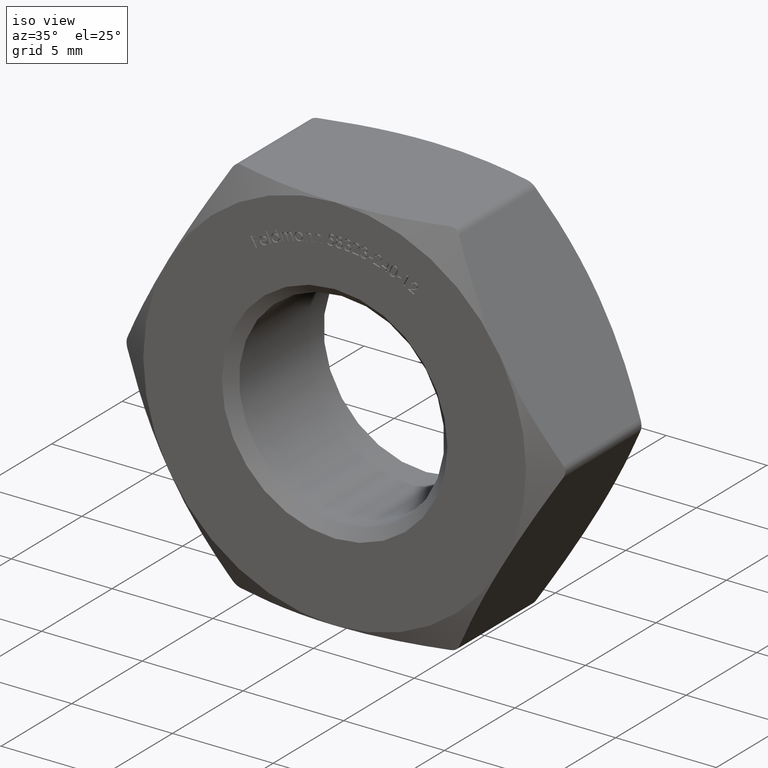
[diagram: clean part render]
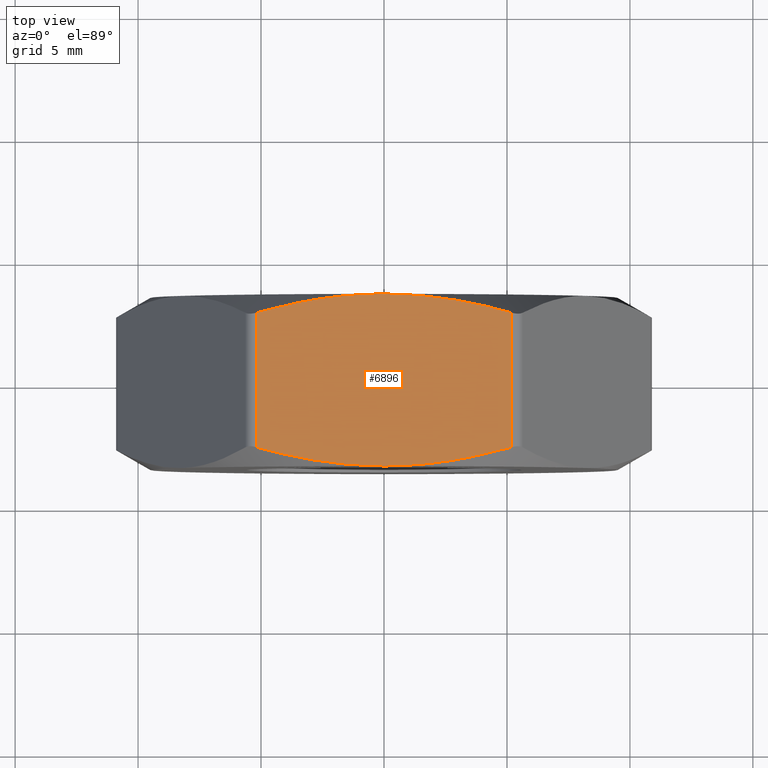
[diagram: tour spotlight — one face highlighted and labeled with its STEP entity id]
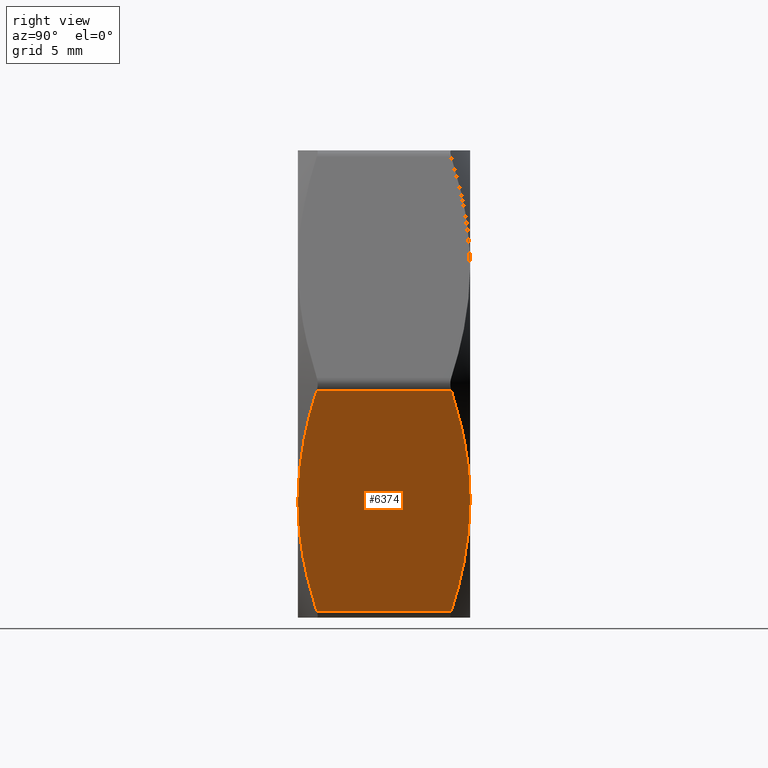
[diagram: tour spotlight — one face highlighted and labeled with its STEP entity id]
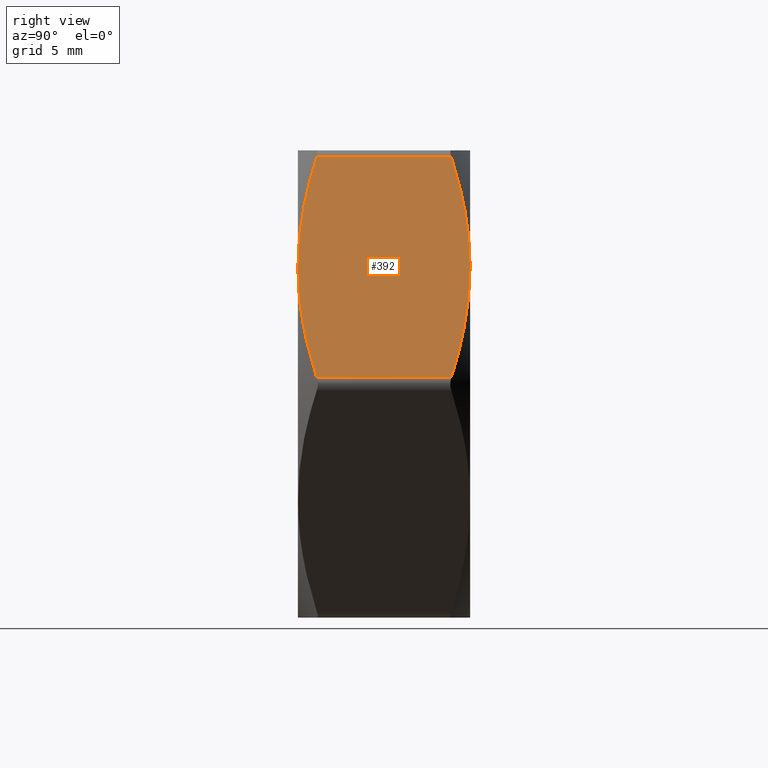
[diagram: tour spotlight — one face highlighted and labeled with its STEP entity id]
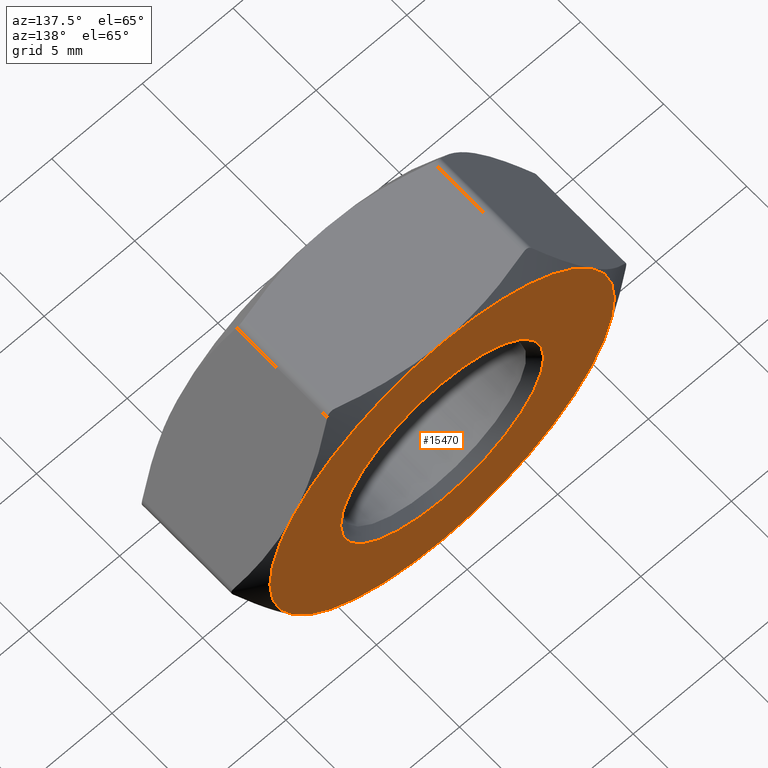
[diagram: tour spotlight — one face highlighted and labeled with its STEP entity id]
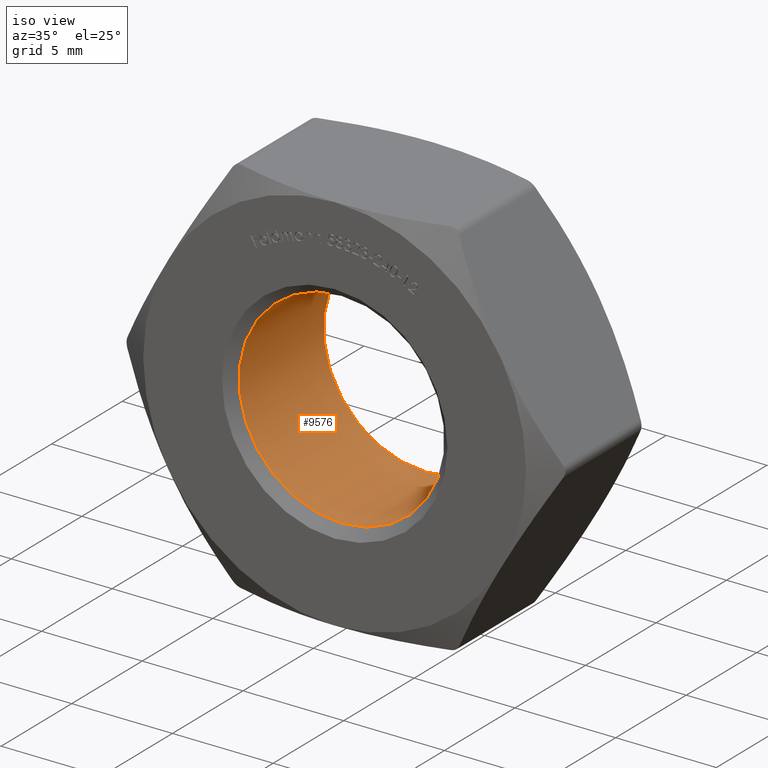
[diagram: tour spotlight — one face highlighted and labeled with its STEP entity id]
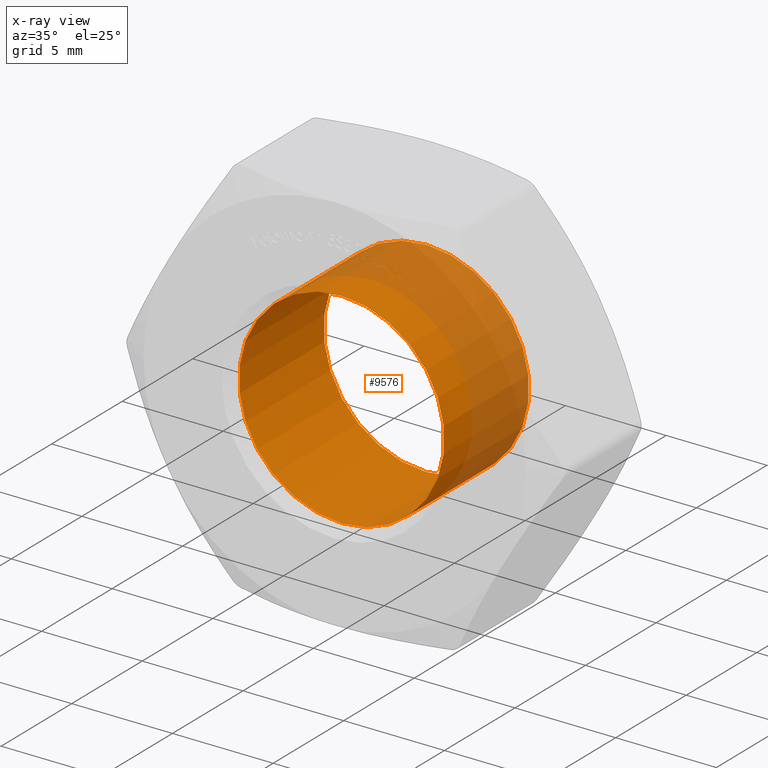
[diagram: x-ray of the same camera — body ghosted, this tour face saturated]
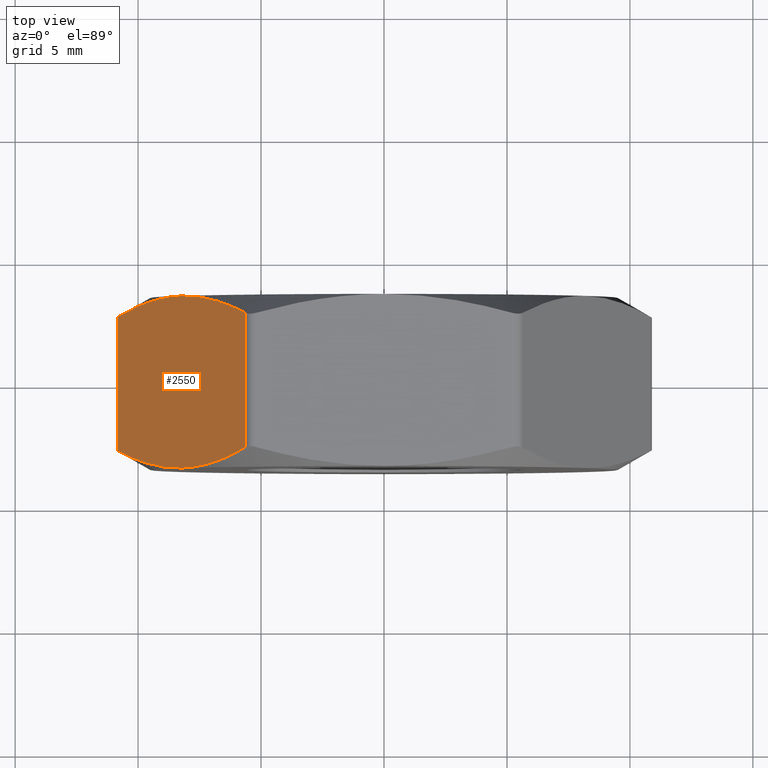
[diagram: tour spotlight — one face highlighted and labeled with its STEP entity id]
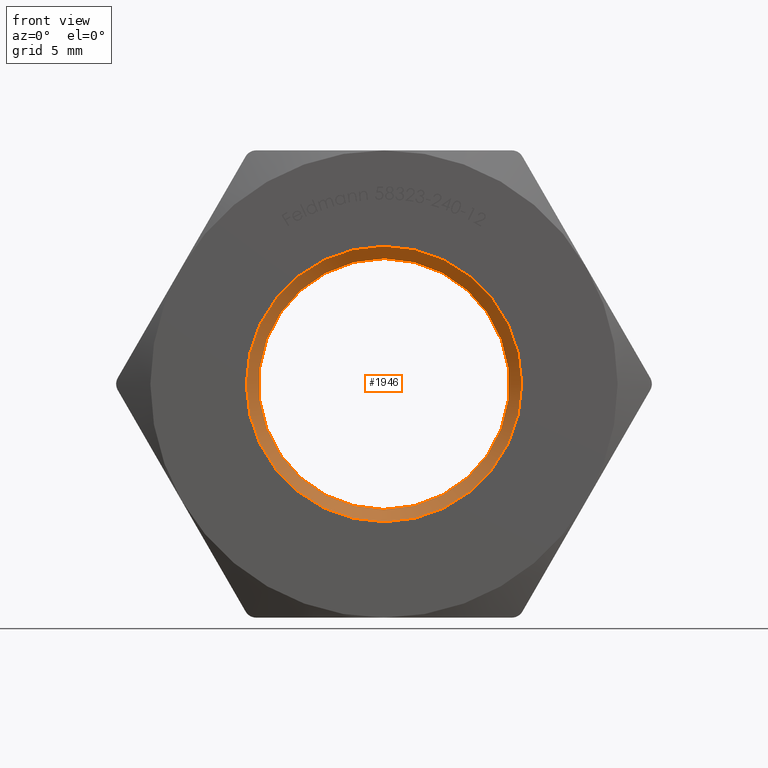
[diagram: tour spotlight — one face highlighted and labeled with its STEP entity id]
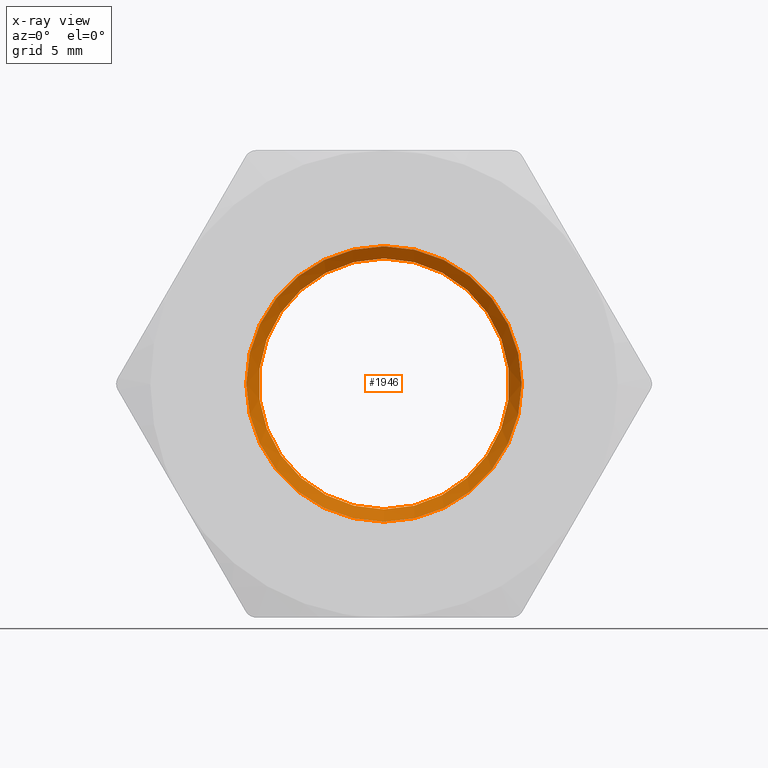
[diagram: x-ray of the same camera — body ghosted, this tour face saturated]
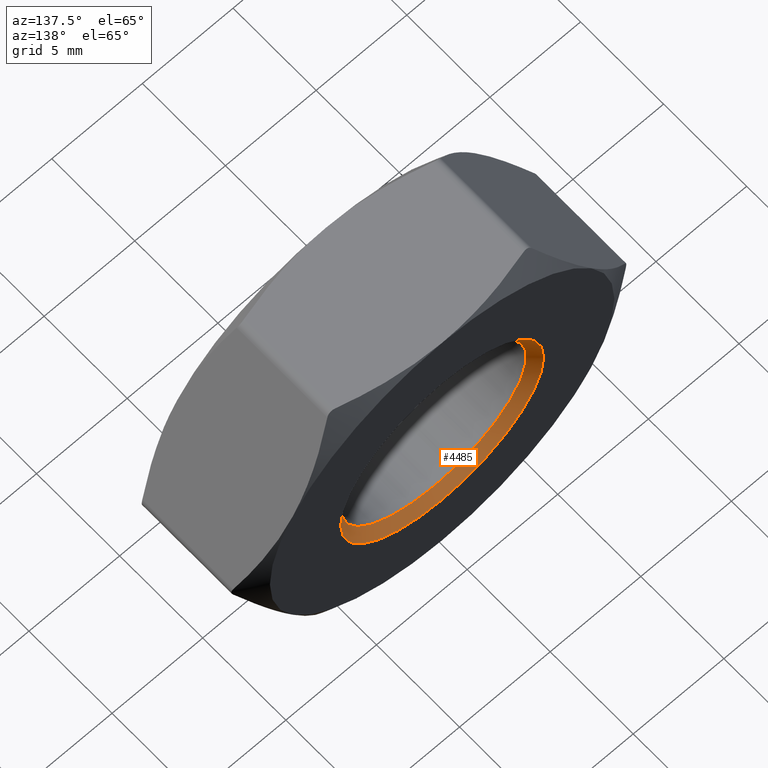
[diagram: tour spotlight — one face highlighted and labeled with its STEP entity id]
A machine part: a face-by-face anatomy tour. The part has 295 B-rep faces; the first image is the clean iso view, then the 8 largest visible faces are spotlighted one at a time (largest first), each with its STEP entity span.

Face 1 — top view, entity #6896. In plain terms, the highlighted planar face has unit normal (0, 0, -1).
Definition (entity closure, byte-faithful):
#66 = LINE ( 'NONE', #2085, #14171 ) ;
#240 = DIRECTION ( 'NONE',  ( 0.0000000000000000000, -1.000000000000000000, 0.0000000000000000000 ) ) ;
#1263 = CARTESIAN_POINT ( 'NONE',  ( -5.196152422707281300, -2.733161112797592600, 9.500000000000001800 ) ) ;
#1302 = ORIENTED_EDGE ( 'NONE', *, *, #11819, .T. ) ;
#1359 = CARTESIAN_POINT ( 'NONE',  ( 1.760928236677265200, -3.412279427820716900, 9.499999999999998200 ) ) ;
#1393 = CARTESIAN_POINT ( 'NONE',  ( -4.348666152671948600, -2.967960792442867900, 9.500000000000001800 ) ) ;
#1586 = ORIENTED_EDGE ( 'NONE', *, *, #12174, .T. ) ;
#1719 = AXIS2_PLACEMENT_3D ( 'NONE', #13876, #13938, #2223 ) ;
#1862 = CARTESIAN_POINT ( 'NONE',  ( 0.4385791114193116600, 3.500000000000000400, 9.500000000000001800 ) ) ;
#2085 = CARTESIAN_POINT ( 'NONE',  ( 5.196152422706629400, 3.500000000000000000, 9.500000000000001800 ) ) ;
#2223 = DIRECTION ( 'NONE',  ( -1.000000000000000000, 0.0000000000000000000, -0.0000000000000000000 ) ) ;
#2463 = CARTESIAN_POINT ( 'NONE',  ( 3.931690912932538000E-017, 3.500000000000000000, 9.500000000000001800 ) ) ;
#2633 = CARTESIAN_POINT ( 'NONE',  ( 4.354865280869844900, -2.966243297580165800, 9.500000000000000000 ) ) ;
#3201 = ORIENTED_EDGE ( 'NONE', *, *, #5594, .T. ) ;
#3647 = CARTESIAN_POINT ( 'NONE',  ( -3.482435840627231100, 3.163065989375614300, 9.500000000000000000 ) ) ;
#3751 = CARTESIAN_POINT ( 'NONE',  ( -3.482435840627232900, -3.163065989375615700, 9.500000000000001800 ) ) ;
#4052 = CARTESIAN_POINT ( 'NONE',  ( 0.4385791114193118300, -3.500000000000000900, 9.500000000000005300 ) ) ;
#4646 = B_SPLINE_CURVE_WITH_KNOTS ( 'NONE', 3,
 ( #10373, #4052, #6693, #1359, #10586, #10427, #2633, #14314 ),
 .UNSPECIFIED., .F., .F.,
 ( 4, 2, 2, 4 ),
 ( 0.01533434628928726800, 0.01664715435547534100, 0.01795996242166341200, 0.02058557855403955700 ),
 .UNSPECIFIED. ) ;
#4768 = VERTEX_POINT ( 'NONE', #5012 ) ;
#5012 = CARTESIAN_POINT ( 'NONE',  ( 5.196152422706628500, -2.733161112797773300, 9.500000000000001800 ) ) ;
#5090 = EDGE_LOOP ( 'NONE', ( #1586, #3201, #7163, #6898, #6024, #1302 ) ) ;
#5537 = EDGE_CURVE ( 'NONE', #15107, #9772, #6903, .T. ) ;
#5594 = EDGE_CURVE ( 'NONE', #4768, #16741, #66, .T. ) ;
#6024 = ORIENTED_EDGE ( 'NONE', *, *, #5537, .T. ) ;
#6248 = CARTESIAN_POINT ( 'NONE',  ( -5.196152422707281300, 2.733161112797592600, 9.500000000000001800 ) ) ;
#6693 = CARTESIAN_POINT ( 'NONE',  ( 0.8784862103107673500, -3.482381200358126700, 9.500000000000000000 ) ) ;
#6896 = ADVANCED_FACE ( 'NONE', ( #13353 ), #12633, .F. ) ;
#6898 = ORIENTED_EDGE ( 'NONE', *, *, #10385, .T. ) ;
#6903 = LINE ( 'NONE', #14333, #9334 ) ;
#7095 = CARTESIAN_POINT ( 'NONE',  ( 5.196152422706628500, 2.733161112797773300, 9.500000000000001800 ) ) ;
#7163 = ORIENTED_EDGE ( 'NONE', *, *, #11912, .T. ) ;
#7400 = CARTESIAN_POINT ( 'NONE',  ( 3.931690912932538000E-017, 3.500000000000000000, 9.500000000000001800 ) ) ;
#7862 = CARTESIAN_POINT ( 'NONE',  ( -5.196152422707281300, -2.733161112797592600, 9.500000000000001800 ) ) ;
#8284 = CARTESIAN_POINT ( 'NONE',  ( 3.931690912932538000E-017, 3.500000000000000000, 9.500000000000001800 ) ) ;
#8340 = CARTESIAN_POINT ( 'NONE',  ( 1.760928236677264300, 3.412279427820718200, 9.500000000000001800 ) ) ;
#8998 = VERTEX_POINT ( 'NONE', #7400 ) ;
#9288 = CARTESIAN_POINT ( 'NONE',  ( 5.196152422706628500, 2.733161112797773300, 9.500000000000001800 ) ) ;
#9334 = VECTOR ( 'NONE', #240, 1000.000000000000000 ) ;
#9756 = CARTESIAN_POINT ( 'NONE',  ( 4.354865280869846700, 2.966243297580164900, 9.500000000000000000 ) ) ;
#9772 = VERTEX_POINT ( 'NONE', #1263 ) ;
#10227 = B_SPLINE_CURVE_WITH_KNOTS ( 'NONE', 3,
 ( #7095, #9756, #13506, #13622, #8340, #12262, #1862, #8284 ),
 .UNSPECIFIED., .F., .F.,
 ( 4, 2, 2, 4 ),
 ( 0.004320510210316343000, 0.006939413859408409200, 0.008248865683954442800, 0.009558317508500476300 ),
 .UNSPECIFIED. ) ;
#10373 = CARTESIAN_POINT ( 'NONE',  ( 3.931690912932538000E-017, -3.500000000000000000, 9.500000000000001800 ) ) ;
#10385 = EDGE_CURVE ( 'NONE', #8998, #15107, #14054, .T. ) ;
#10427 = CARTESIAN_POINT ( 'NONE',  ( 3.502637132481559900, -3.159066489143098200, 9.500000000000003600 ) ) ;
#10586 = CARTESIAN_POINT ( 'NONE',  ( 2.200295668405325900, -3.359992646379002400, 9.500000000000001800 ) ) ;
#11379 = CARTESIAN_POINT ( 'NONE',  ( -1.748548221912492800, 3.428786257910812400, 9.500000000000001800 ) ) ;
#11469 = CARTESIAN_POINT ( 'NONE',  ( -5.196152422707281300, 2.733161112797592600, 9.500000000000001800 ) ) ;
#11529 = CARTESIAN_POINT ( 'NONE',  ( -0.8769579191401497600, -3.500000000000000000, 9.500000000000001800 ) ) ;
#11819 = EDGE_CURVE ( 'NONE', #9772, #15396, #13203, .T. ) ;
#11912 = EDGE_CURVE ( 'NONE', #16741, #8998, #10227, .T. ) ;
#12174 = EDGE_CURVE ( 'NONE', #15396, #4768, #4646, .T. ) ;
#12262 = CARTESIAN_POINT ( 'NONE',  ( 0.8784862103107657900, 3.482381200358127600, 9.500000000000003600 ) ) ;
#12633 = PLANE ( 'NONE',  #1719 ) ;
#12656 = CARTESIAN_POINT ( 'NONE',  ( -4.348666152671949400, 2.967960792442867500, 9.500000000000001800 ) ) ;
#12780 = CARTESIAN_POINT ( 'NONE',  ( -0.8769579191401494200, 3.500000000000000000, 9.500000000000001800 ) ) ;
#13203 = B_SPLINE_CURVE_WITH_KNOTS ( 'NONE', 3,
 ( #7862, #1393, #3751, #16726, #11529, #14125 ),
 .UNSPECIFIED., .F., .F.,
 ( 4, 2, 4 ),
 ( 0.01008431317107068100, 0.01270932973017897500, 0.01533434628928726800 ),
 .UNSPECIFIED. ) ;
#13353 = FACE_OUTER_BOUND ( 'NONE', #5090, .T. ) ;
#13506 = CARTESIAN_POINT ( 'NONE',  ( 3.502637132481559500, 3.159066489143096000, 9.499999999999998200 ) ) ;
#13622 = CARTESIAN_POINT ( 'NONE',  ( 2.200295668405326800, 3.359992646379001500, 9.500000000000005300 ) ) ;
#13858 = CARTESIAN_POINT ( 'NONE',  ( 3.931690912932538000E-017, -3.500000000000000000, 9.500000000000001800 ) ) ;
#13876 = CARTESIAN_POINT ( 'NONE',  ( -5.484827557301440700, 3.500000000000000000, 9.500000000000001800 ) ) ;
#13938 = DIRECTION ( 'NONE',  ( 0.0000000000000000000, 0.0000000000000000000, -1.000000000000000000 ) ) ;
#14054 = B_SPLINE_CURVE_WITH_KNOTS ( 'NONE', 3,
 ( #2463, #12780, #11379, #3647, #12656, #6248 ),
 .UNSPECIFIED., .F., .F.,
 ( 4, 2, 4 ),
 ( 0.009558317508500476300, 0.01217662311715559200, 0.01479492872581070700 ),
 .UNSPECIFIED. ) ;
#14125 = CARTESIAN_POINT ( 'NONE',  ( 3.931690912932538000E-017, -3.500000000000000000, 9.500000000000001800 ) ) ;
#14171 = VECTOR ( 'NONE', #14939, 1000.000000000000000 ) ;
#14314 = CARTESIAN_POINT ( 'NONE',  ( 5.196152422706628500, -2.733161112797773300, 9.500000000000001800 ) ) ;
#14333 = CARTESIAN_POINT ( 'NONE',  ( -5.196152422706628500, 3.500000000000000000, 9.500000000000001800 ) ) ;
#14939 = DIRECTION ( 'NONE',  ( -0.0000000000000000000, 1.000000000000000000, -0.0000000000000000000 ) ) ;
#15107 = VERTEX_POINT ( 'NONE', #11469 ) ;
#15396 = VERTEX_POINT ( 'NONE', #13858 ) ;
#16726 = CARTESIAN_POINT ( 'NONE',  ( -1.748548221912492400, -3.428786257910811500, 9.500000000000000000 ) ) ;
#16741 = VERTEX_POINT ( 'NONE', #9288 ) ;

Face 2 — right view, entity #6374. In plain terms, the highlighted planar face has unit normal (-0.866, 0, 0.5).
Definition (entity closure, byte-faithful):
#77 = CARTESIAN_POINT ( 'NONE',  ( 10.40005022359209600, -2.968805358379082500, -0.9865846114704192000 ) ) ;
#180 = VERTEX_POINT ( 'NONE', #13885 ) ;
#317 = CARTESIAN_POINT ( 'NONE',  ( 10.82531754730547700, 3.500000000000000000, -0.2500000000000003300 ) ) ;
#410 = VERTEX_POINT ( 'NONE', #1605 ) ;
#454 = EDGE_CURVE ( 'NONE', #180, #14901, #10689, .T. ) ;
#904 = CARTESIAN_POINT ( 'NONE',  ( 9.106704621436115600, 3.412405536657729100, -3.226724906150326300 ) ) ;
#1137 = CARTESIAN_POINT ( 'NONE',  ( 8.227241335952168600, -3.500000000000000000, -4.750000000000002700 ) ) ;
#1196 = CARTESIAN_POINT ( 'NONE',  ( 5.629165124598847200, -2.733161112797776000, -9.249999999999996400 ) ) ;
#1255 = CARTESIAN_POINT ( 'NONE',  ( 7.130196065325847600, -3.360768812073044100, -6.650138146927925900 ) ) ;
#1605 = CARTESIAN_POINT ( 'NONE',  ( 5.629165124598348900, 2.733161112797500200, -9.250000000000859800 ) ) ;
#1729 = ORIENTED_EDGE ( 'NONE', *, *, #13003, .T. ) ;
#2051 = EDGE_CURVE ( 'NONE', #14901, #16265, #14391, .T. ) ;
#2747 = ORIENTED_EDGE ( 'NONE', *, *, #7385, .T. ) ;
#3011 = CARTESIAN_POINT ( 'NONE',  ( 8.227241335952168600, 3.500000000000000000, -4.750000000000002700 ) ) ;
#3360 = CARTESIAN_POINT ( 'NONE',  ( 7.785049015618848300, 3.500000000000009800, -5.515899565534068600 ) ) ;
#3867 = ORIENTED_EDGE ( 'NONE', *, *, #454, .T. ) ;
#4366 = EDGE_CURVE ( 'NONE', #10076, #410, #7933, .T. ) ;
#4502 = VECTOR ( 'NONE', #4942, 1000.000000000000000 ) ;
#4665 = CARTESIAN_POINT ( 'NONE',  ( 8.227241335952168600, 3.500000000000000000, -4.750000000000002700 ) ) ;
#4942 = DIRECTION ( 'NONE',  ( -0.0000000000000000000, 1.000000000000000000, -0.0000000000000000000 ) ) ;
#5027 = CARTESIAN_POINT ( 'NONE',  ( 7.347778050468201100, -3.412405536657730400, -6.273275093849669300 ) ) ;
#6011 = CARTESIAN_POINT ( 'NONE',  ( 8.668755713662402900, 3.482053147081709500, -3.985274665533705000 ) ) ;
#6030 = AXIS2_PLACEMENT_3D ( 'NONE', #8521, #15176, #11173 ) ;
#6227 = EDGE_LOOP ( 'NONE', ( #14005, #3867, #8506, #1729, #12383, #2747 ) ) ;
#6288 = CARTESIAN_POINT ( 'NONE',  ( 5.629165124598846300, 3.500000000000000000, -9.249999999999998200 ) ) ;
#6374 = ADVANCED_FACE ( 'NONE', ( #8947 ), #10888, .F. ) ;
#7385 = EDGE_CURVE ( 'NONE', #410, #9384, #8066, .T. ) ;
#7591 = CARTESIAN_POINT ( 'NONE',  ( 8.227241335952168600, 3.500000000000000000, -4.750000000000002700 ) ) ;
#7898 = CARTESIAN_POINT ( 'NONE',  ( 8.227241335952168600, -3.500000000000000000, -4.750000000000002700 ) ) ;
#7933 = LINE ( 'NONE', #6288, #4502 ) ;
#7953 = B_SPLINE_CURVE_WITH_KNOTS ( 'NONE', 3,
 ( #1137, #8859, #15351, #5027, #1255, #12796, #10264, #1196 ),
 .UNSPECIFIED., .F., .F.,
 ( 4, 2, 2, 4 ),
 ( 0.005549985383765651500, 0.006857997360578056400, 0.008166009337390461200, 0.01078203329101526900 ),
 .UNSPECIFIED. ) ;
#8066 = B_SPLINE_CURVE_WITH_KNOTS ( 'NONE', 3,
 ( #8566, #14826, #12258, #12207, #3360, #4665 ),
 .UNSPECIFIED., .F., .F.,
 ( 4, 2, 4 ),
 ( 0.0002975922718325331100, 0.002923788827799093200, 0.005549985383765653300 ),
 .UNSPECIFIED. ) ;
#8136 = EDGE_CURVE ( 'NONE', #9384, #180, #14369, .T. ) ;
#8505 = CARTESIAN_POINT ( 'NONE',  ( 9.973320679115390800, 3.161040693212943300, -1.725701863594798300 ) ) ;
#8506 = ORIENTED_EDGE ( 'NONE', *, *, #2051, .T. ) ;
#8521 = CARTESIAN_POINT ( 'NONE',  ( 10.96965511460288500, 3.500000000000000000, -6.505221423103622500E-017 ) ) ;
#8566 = CARTESIAN_POINT ( 'NONE',  ( 5.629165124598348900, 2.733161112797500200, -9.250000000000859800 ) ) ;
#8617 = CARTESIAN_POINT ( 'NONE',  ( 10.82531754730547700, 2.733161112797775500, -0.2499999999999995800 ) ) ;
#8859 = CARTESIAN_POINT ( 'NONE',  ( 8.007001594286077100, -3.500000000000009800, -5.131466422411501900 ) ) ;
#8947 = FACE_OUTER_BOUND ( 'NONE', #6227, .T. ) ;
#9164 = CARTESIAN_POINT ( 'NONE',  ( 10.82531754730597700, -2.733161112797499700, -0.2499999999991389900 ) ) ;
#9384 = VERTEX_POINT ( 'NONE', #7591 ) ;
#9695 = VECTOR ( 'NONE', #15921, 1000.000000000000000 ) ;
#9974 = CARTESIAN_POINT ( 'NONE',  ( 8.447481077618247600, 3.500000000000008900, -4.368533577588494600 ) ) ;
#10076 = VERTEX_POINT ( 'NONE', #11771 ) ;
#10264 = CARTESIAN_POINT ( 'NONE',  ( 6.053412761787221500, -2.968240341392044200, -8.515181537398683900 ) ) ;
#10689 = LINE ( 'NONE', #317, #9695 ) ;
#10888 = PLANE ( 'NONE',  #6030 ) ;
#11138 = CARTESIAN_POINT ( 'NONE',  ( 8.227241335952168600, -3.500000000000000000, -4.750000000000002700 ) ) ;
#11173 = DIRECTION ( 'NONE',  ( 0.5000000000000001100, 0.0000000000000000000, 0.8660254037844386000 ) ) ;
#11569 = CARTESIAN_POINT ( 'NONE',  ( 8.669433656285473700, -3.500000000000009800, -3.984100434465927400 ) ) ;
#11671 = CARTESIAN_POINT ( 'NONE',  ( 9.106430400612969900, -3.427662757294320400, -3.227199870548522300 ) ) ;
#11771 = CARTESIAN_POINT ( 'NONE',  ( 5.629165124598847200, -2.733161112797776000, -9.249999999999996400 ) ) ;
#12207 = CARTESIAN_POINT ( 'NONE',  ( 7.348052271291351200, 3.427662757294319500, -6.272800129451474600 ) ) ;
#12258 = CARTESIAN_POINT ( 'NONE',  ( 6.482771478358112700, 3.161682687220365800, -7.771510425625338700 ) ) ;
#12383 = ORIENTED_EDGE ( 'NONE', *, *, #4366, .T. ) ;
#12409 = CARTESIAN_POINT ( 'NONE',  ( 10.82531754730597700, -2.733161112797499700, -0.2499999999991389900 ) ) ;
#12796 = CARTESIAN_POINT ( 'NONE',  ( 6.481161992788936600, -3.161040693212944700, -7.774298136405196400 ) ) ;
#12910 = CARTESIAN_POINT ( 'NONE',  ( 9.971711193546212800, -3.161682687220365800, -1.728489574374661300 ) ) ;
#13003 = EDGE_CURVE ( 'NONE', #16265, #10076, #7953, .T. ) ;
#13885 = CARTESIAN_POINT ( 'NONE',  ( 10.82531754730547700, 2.733161112797775500, -0.2499999999999995800 ) ) ;
#14005 = ORIENTED_EDGE ( 'NONE', *, *, #8136, .T. ) ;
#14369 = B_SPLINE_CURVE_WITH_KNOTS ( 'NONE', 3,
 ( #3011, #9974, #6011, #904, #15048, #8505, #16339, #8617 ),
 .UNSPECIFIED., .F., .F.,
 ( 4, 2, 2, 4 ),
 ( 0.005549985383765653300, 0.006857997360578058100, 0.008166009337390462900, 0.01078203329101527400 ),
 .UNSPECIFIED. ) ;
#14391 = B_SPLINE_CURVE_WITH_KNOTS ( 'NONE', 3,
 ( #9164, #77, #12910, #11671, #11569, #7898 ),
 .UNSPECIFIED., .F., .F.,
 ( 4, 2, 4 ),
 ( 0.0002975922718325326200, 0.002923788827799092400, 0.005549985383765651500 ),
 .UNSPECIFIED. ) ;
#14826 = CARTESIAN_POINT ( 'NONE',  ( 6.054432448312225800, 2.968805358379082100, -8.513415388529578500 ) ) ;
#14901 = VERTEX_POINT ( 'NONE', #12409 ) ;
#15048 = CARTESIAN_POINT ( 'NONE',  ( 9.324286606578478900, 3.360768812073043700, -2.849861853072070100 ) ) ;
#15176 = DIRECTION ( 'NONE',  ( -0.8660254037844386000, 0.0000000000000000000, 0.5000000000000001100 ) ) ;
#15351 = CARTESIAN_POINT ( 'NONE',  ( 7.785726958241923500, -3.482053147081710000, -5.514725334466293200 ) ) ;
#15921 = DIRECTION ( 'NONE',  ( 0.0000000000000000000, -1.000000000000000000, 0.0000000000000000000 ) ) ;
#16265 = VERTEX_POINT ( 'NONE', #11138 ) ;
#16339 = CARTESIAN_POINT ( 'NONE',  ( 10.40106991011710800, 2.968240341392045500, -0.9848184626013102300 ) ) ;

Face 3 — right view, entity #392. In plain terms, the highlighted planar face has unit normal (-0.866, 0, -0.5).
Definition (entity closure, byte-faithful):
#203 = DIRECTION ( 'NONE',  ( -0.4999999999999997200, 0.0000000000000000000, 0.8660254037844388200 ) ) ;
#392 = ADVANCED_FACE ( 'NONE', ( #11701 ), #5342, .F. ) ;
#739 = ORIENTED_EDGE ( 'NONE', *, *, #8512, .T. ) ;
#1085 = EDGE_CURVE ( 'NONE', #6327, #3624, #5201, .T. ) ;
#1295 = VECTOR ( 'NONE', #11214, 1000.000000000000000 ) ;
#1637 = CARTESIAN_POINT ( 'NONE',  ( 10.82531754730597500, 2.733161112797500200, 0.2499999999991383800 ) ) ;
#1864 = B_SPLINE_CURVE_WITH_KNOTS ( 'NONE', 3,
 ( #9003, #9062, #14197, #6464, #15657, #5343 ),
 .UNSPECIFIED., .F., .F.,
 ( 4, 2, 4 ),
 ( 0.0002975922718325326700, 0.002923788827799096300, 0.005549985383765659300 ),
 .UNSPECIFIED. ) ;
#2025 = VERTEX_POINT ( 'NONE', #8926 ) ;
#2139 = CARTESIAN_POINT ( 'NONE',  ( 8.668755713662406500, -3.482053147081709500, 3.985274665533703200 ) ) ;
#3313 = CARTESIAN_POINT ( 'NONE',  ( 9.106430400612966400, 3.427662757294319500, 3.227199870548520500 ) ) ;
#3624 = VERTEX_POINT ( 'NONE', #16679 ) ;
#4797 = ORIENTED_EDGE ( 'NONE', *, *, #11699, .T. ) ;
#4981 = CARTESIAN_POINT ( 'NONE',  ( 10.82531754730547700, -2.733161112797775500, 0.2499999999999995800 ) ) ;
#5158 = CARTESIAN_POINT ( 'NONE',  ( 5.629165124598849000, 3.500000000000000000, 9.250000000000001800 ) ) ;
#5201 = B_SPLINE_CURVE_WITH_KNOTS ( 'NONE', 3,
 ( #7493, #8748, #7328, #16403, #16347, #7269, #11217, #12557 ),
 .UNSPECIFIED., .F., .F.,
 ( 4, 2, 2, 4 ),
 ( 0.005549985383765647200, 0.006857997360578052900, 0.008166009337390457700, 0.01078203329101527400 ),
 .UNSPECIFIED. ) ;
#5342 = PLANE ( 'NONE',  #13933 ) ;
#5343 = CARTESIAN_POINT ( 'NONE',  ( 8.227241335952170300, -3.500000000000000000, 4.749999999999999100 ) ) ;
#5386 = VERTEX_POINT ( 'NONE', #4981 ) ;
#5389 = DIRECTION ( 'NONE',  ( -0.8660254037844388200, 0.0000000000000000000, -0.4999999999999997200 ) ) ;
#5795 = CARTESIAN_POINT ( 'NONE',  ( 9.971711193546212800, 3.161682687220365800, 1.728489574374660000 ) ) ;
#6197 = B_SPLINE_CURVE_WITH_KNOTS ( 'NONE', 3,
 ( #14995, #7266, #2139, #11269, #15109, #13789, #7434, #7382 ),
 .UNSPECIFIED., .F., .F.,
 ( 4, 2, 2, 4 ),
 ( 0.005549985383765659300, 0.006857997360578063300, 0.008166009337390468100, 0.01078203329101527600 ),
 .UNSPECIFIED. ) ;
#6327 = VERTEX_POINT ( 'NONE', #13458 ) ;
#6464 = CARTESIAN_POINT ( 'NONE',  ( 7.348052271291358300, -3.427662757294319000, 6.272800129451474600 ) ) ;
#6639 = ORIENTED_EDGE ( 'NONE', *, *, #11458, .T. ) ;
#6837 = CARTESIAN_POINT ( 'NONE',  ( 5.484827557301442400, 3.500000000000000000, 9.500000000000001800 ) ) ;
#7266 = CARTESIAN_POINT ( 'NONE',  ( 8.447481077618251200, -3.500000000000008000, 4.368533577588492800 ) ) ;
#7269 = CARTESIAN_POINT ( 'NONE',  ( 6.481161992788939200, 3.161040693212942000, 7.774298136405198200 ) ) ;
#7328 = CARTESIAN_POINT ( 'NONE',  ( 7.785726958241927100, 3.482053147081709500, 5.514725334466291400 ) ) ;
#7382 = CARTESIAN_POINT ( 'NONE',  ( 10.82531754730547700, -2.733161112797775500, 0.2499999999999995800 ) ) ;
#7434 = CARTESIAN_POINT ( 'NONE',  ( 10.40106991011710700, -2.968240341392044200, 0.9848184626013096700 ) ) ;
#7493 = CARTESIAN_POINT ( 'NONE',  ( 8.227241335952170300, 3.500000000000000000, 4.749999999999999100 ) ) ;
#7792 = DIRECTION ( 'NONE',  ( 0.0000000000000000000, -1.000000000000000000, 0.0000000000000000000 ) ) ;
#7944 = LINE ( 'NONE', #9808, #1295 ) ;
#8229 = CARTESIAN_POINT ( 'NONE',  ( 8.669433656285479000, 3.500000000000008900, 3.984100434465925200 ) ) ;
#8512 = EDGE_CURVE ( 'NONE', #14062, #2025, #1864, .T. ) ;
#8748 = CARTESIAN_POINT ( 'NONE',  ( 8.007001594286082400, 3.500000000000008400, 5.131466422411501000 ) ) ;
#8926 = CARTESIAN_POINT ( 'NONE',  ( 8.227241335952170300, -3.500000000000000000, 4.749999999999999100 ) ) ;
#9003 = CARTESIAN_POINT ( 'NONE',  ( 5.629165124598350700, -2.733161112797497100, 9.250000000000863300 ) ) ;
#9062 = CARTESIAN_POINT ( 'NONE',  ( 6.054432448312230300, -2.968805358379079000, 8.513415388529582000 ) ) ;
#9808 = CARTESIAN_POINT ( 'NONE',  ( 10.82531754730547700, 3.500000000000000000, 0.2499999999999985000 ) ) ;
#10327 = B_SPLINE_CURVE_WITH_KNOTS ( 'NONE', 3,
 ( #1637, #16176, #5795, #3313, #8229, #13339 ),
 .UNSPECIFIED., .F., .F.,
 ( 4, 2, 4 ),
 ( 0.0002975922718325330000, 0.002923788827799089800, 0.005549985383765647200 ),
 .UNSPECIFIED. ) ;
#11214 = DIRECTION ( 'NONE',  ( -0.0000000000000000000, 1.000000000000000000, -0.0000000000000000000 ) ) ;
#11217 = CARTESIAN_POINT ( 'NONE',  ( 6.053412761787222400, 2.968240341392042400, 8.515181537398687400 ) ) ;
#11269 = CARTESIAN_POINT ( 'NONE',  ( 9.106704621436126200, -3.412405536657729100, 3.226724906150326300 ) ) ;
#11458 = EDGE_CURVE ( 'NONE', #3624, #14062, #16010, .T. ) ;
#11699 = EDGE_CURVE ( 'NONE', #2025, #5386, #6197, .T. ) ;
#11701 = FACE_OUTER_BOUND ( 'NONE', #12001, .T. ) ;
#11822 = CARTESIAN_POINT ( 'NONE',  ( 5.629165124598350700, -2.733161112797497100, 9.250000000000863300 ) ) ;
#11951 = ORIENTED_EDGE ( 'NONE', *, *, #12008, .T. ) ;
#12001 = EDGE_LOOP ( 'NONE', ( #4797, #11951, #15415, #15725, #6639, #739 ) ) ;
#12008 = EDGE_CURVE ( 'NONE', #5386, #13647, #7944, .T. ) ;
#12557 = CARTESIAN_POINT ( 'NONE',  ( 5.629165124598849000, 2.733161112797772400, 9.250000000000001800 ) ) ;
#13339 = CARTESIAN_POINT ( 'NONE',  ( 8.227241335952170300, 3.500000000000000000, 4.749999999999999100 ) ) ;
#13401 = CARTESIAN_POINT ( 'NONE',  ( 10.82531754730597500, 2.733161112797500200, 0.2499999999991383800 ) ) ;
#13458 = CARTESIAN_POINT ( 'NONE',  ( 8.227241335952170300, 3.500000000000000000, 4.749999999999999100 ) ) ;
#13647 = VERTEX_POINT ( 'NONE', #13401 ) ;
#13789 = CARTESIAN_POINT ( 'NONE',  ( 9.973320679115387200, -3.161040693212943800, 1.725701863594798700 ) ) ;
#13933 = AXIS2_PLACEMENT_3D ( 'NONE', #6837, #5389, #203 ) ;
#14062 = VERTEX_POINT ( 'NONE', #11822 ) ;
#14197 = CARTESIAN_POINT ( 'NONE',  ( 6.482771478358116300, -3.161682687220363600, 7.771510425625339600 ) ) ;
#14995 = CARTESIAN_POINT ( 'NONE',  ( 8.227241335952170300, -3.500000000000000000, 4.749999999999999100 ) ) ;
#15109 = CARTESIAN_POINT ( 'NONE',  ( 9.324286606578480600, -3.360768812073043200, 2.849861853072070500 ) ) ;
#15221 = VECTOR ( 'NONE', #7792, 1000.000000000000000 ) ;
#15415 = ORIENTED_EDGE ( 'NONE', *, *, #16095, .T. ) ;
#15657 = CARTESIAN_POINT ( 'NONE',  ( 7.785049015618852800, -3.500000000000008900, 5.515899565534066800 ) ) ;
#15725 = ORIENTED_EDGE ( 'NONE', *, *, #1085, .T. ) ;
#16010 = LINE ( 'NONE', #5158, #15221 ) ;
#16095 = EDGE_CURVE ( 'NONE', #13647, #6327, #10327, .T. ) ;
#16176 = CARTESIAN_POINT ( 'NONE',  ( 10.40005022359209600, 2.968805358379080800, 0.9865846114704189800 ) ) ;
#16347 = CARTESIAN_POINT ( 'NONE',  ( 7.130196065325849400, 3.360768812073043200, 6.650138146927925900 ) ) ;
#16403 = CARTESIAN_POINT ( 'NONE',  ( 7.347778050468206400, 3.412405536657730400, 6.273275093849668400 ) ) ;
#16679 = CARTESIAN_POINT ( 'NONE',  ( 5.629165124598849000, 2.733161112797772400, 9.250000000000001800 ) ) ;

Face 4 — auxiliary view, entity #15470. In plain terms, the highlighted planar face has unit normal (0, 1, 0).
Definition (entity closure, byte-faithful):
#405 = DIRECTION ( 'NONE',  ( -0.0000000000000000000, -1.000000000000000000, -0.0000000000000000000 ) ) ;
#534 = AXIS2_PLACEMENT_3D ( 'NONE', #13632, #14947, #7213 ) ;
#835 = DIRECTION ( 'NONE',  ( 0.0000000000000000000, 0.0000000000000000000, 1.000000000000000000 ) ) ;
#861 = AXIS2_PLACEMENT_3D ( 'NONE', #2030, #3496, #11279 ) ;
#882 = ORIENTED_EDGE ( 'NONE', *, *, #4133, .F. ) ;
#1021 = CARTESIAN_POINT ( 'NONE',  ( -8.227241335952168600, 3.500000000000000000, 4.750000000000000900 ) ) ;
#1217 = VERTEX_POINT ( 'NONE', #1248 ) ;
#1248 = CARTESIAN_POINT ( 'NONE',  ( -8.227241335952168600, 3.500000000000000000, -4.750000000000001800 ) ) ;
#1608 = CARTESIAN_POINT ( 'NONE',  ( 0.0000000000000000000, 3.500000000000000000, 5.600000000000000500 ) ) ;
#1980 = EDGE_LOOP ( 'NONE', ( #7069 ) ) ;
#2030 = CARTESIAN_POINT ( 'NONE',  ( 3.931690912932538000E-017, 3.500000000000000000, 0.0000000000000000000 ) ) ;
#3007 = AXIS2_PLACEMENT_3D ( 'NONE', #12933, #7815, #5124 ) ;
#3235 = DIRECTION ( 'NONE',  ( -0.0000000000000000000, -1.000000000000000000, -0.0000000000000000000 ) ) ;
#3496 = DIRECTION ( 'NONE',  ( -1.123340260837868000E-017, -1.000000000000000000, -0.0000000000000000000 ) ) ;
#3853 = CARTESIAN_POINT ( 'NONE',  ( -1.462997689607834900E-015, 3.500000000000000000, -9.500000000000001800 ) ) ;
#4133 = EDGE_CURVE ( 'NONE', #6395, #1217, #14796, .T. ) ;
#4257 = EDGE_CURVE ( 'NONE', #6327, #8998, #8942, .T. ) ;
#4323 = EDGE_CURVE ( 'NONE', #1217, #6143, #15209, .T. ) ;
#4649 = CIRCLE ( 'NONE', #3007, 5.600000000000000500 ) ;
#4709 = CARTESIAN_POINT ( 'NONE',  ( 3.931690912932538000E-017, 3.500000000000000000, 1.848398285660946700E-016 ) ) ;
#5069 = ORIENTED_EDGE ( 'NONE', *, *, #4257, .F. ) ;
#5124 = DIRECTION ( 'NONE',  ( 0.0000000000000000000, 0.0000000000000000000, 1.000000000000000000 ) ) ;
#6108 = CARTESIAN_POINT ( 'NONE',  ( 3.931690912932538000E-017, 3.500000000000000000, 1.848398285660946700E-016 ) ) ;
#6143 = VERTEX_POINT ( 'NONE', #3853 ) ;
#6228 = DIRECTION ( 'NONE',  ( 8.881784197001252300E-016, 0.0000000000000000000, 1.000000000000000000 ) ) ;
#6327 = VERTEX_POINT ( 'NONE', #13458 ) ;
#6395 = VERTEX_POINT ( 'NONE', #1021 ) ;
#6889 = AXIS2_PLACEMENT_3D ( 'NONE', #14445, #405, #13133 ) ;
#7069 = ORIENTED_EDGE ( 'NONE', *, *, #8586, .T. ) ;
#7078 = DIRECTION ( 'NONE',  ( -0.0000000000000000000, -1.000000000000000000, -0.0000000000000000000 ) ) ;
#7086 = DIRECTION ( 'NONE',  ( 0.0000000000000000000, -0.0000000000000000000, 1.000000000000000000 ) ) ;
#7147 = DIRECTION ( 'NONE',  ( 0.0000000000000000000, 1.000000000000000000, 0.0000000000000000000 ) ) ;
#7213 = DIRECTION ( 'NONE',  ( 1.776356839400250500E-015, 0.0000000000000000000, 1.000000000000000000 ) ) ;
#7400 = CARTESIAN_POINT ( 'NONE',  ( 3.931690912932538000E-017, 3.500000000000000000, 9.500000000000001800 ) ) ;
#7485 = FACE_OUTER_BOUND ( 'NONE', #10879, .T. ) ;
#7580 = AXIS2_PLACEMENT_3D ( 'NONE', #4709, #7078, #835 ) ;
#7591 = CARTESIAN_POINT ( 'NONE',  ( 8.227241335952168600, 3.500000000000000000, -4.750000000000002700 ) ) ;
#7815 = DIRECTION ( 'NONE',  ( -0.0000000000000000000, -1.000000000000000000, -0.0000000000000000000 ) ) ;
#8431 = DIRECTION ( 'NONE',  ( 0.0000000000000000000, 0.0000000000000000000, 1.000000000000000000 ) ) ;
#8586 = EDGE_CURVE ( 'NONE', #14479, #14479, #4649, .T. ) ;
#8670 = CIRCLE ( 'NONE', #12851, 9.500000000000001800 ) ;
#8942 = CIRCLE ( 'NONE', #861, 9.500000000000001800 ) ;
#8998 = VERTEX_POINT ( 'NONE', #7400 ) ;
#9384 = VERTEX_POINT ( 'NONE', #7591 ) ;
#9838 = AXIS2_PLACEMENT_3D ( 'NONE', #6108, #15206, #6228 ) ;
#10583 = CIRCLE ( 'NONE', #9838, 9.500000000000001800 ) ;
#10752 = EDGE_CURVE ( 'NONE', #9384, #6327, #10583, .T. ) ;
#10879 = EDGE_LOOP ( 'NONE', ( #12468, #5069, #11207, #12631, #11656, #882 ) ) ;
#10925 = PLANE ( 'NONE',  #16411 ) ;
#11042 = CARTESIAN_POINT ( 'NONE',  ( 0.0000000000000000000, 3.500000000000000000, 0.0000000000000000000 ) ) ;
#11207 = ORIENTED_EDGE ( 'NONE', *, *, #10752, .F. ) ;
#11279 = DIRECTION ( 'NONE',  ( 1.000000000000000000, 0.0000000000000000000, 0.0000000000000000000 ) ) ;
#11656 = ORIENTED_EDGE ( 'NONE', *, *, #4323, .F. ) ;
#12246 = CARTESIAN_POINT ( 'NONE',  ( 3.931690912932538000E-017, 3.500000000000000000, 1.848398285660946700E-016 ) ) ;
#12468 = ORIENTED_EDGE ( 'NONE', *, *, #16160, .F. ) ;
#12631 = ORIENTED_EDGE ( 'NONE', *, *, #16205, .F. ) ;
#12851 = AXIS2_PLACEMENT_3D ( 'NONE', #12246, #3235, #8431 ) ;
#12933 = CARTESIAN_POINT ( 'NONE',  ( 0.0000000000000000000, 3.500000000000000000, 0.0000000000000000000 ) ) ;
#13133 = DIRECTION ( 'NONE',  ( 0.0000000000000000000, 0.0000000000000000000, 1.000000000000000000 ) ) ;
#13458 = CARTESIAN_POINT ( 'NONE',  ( 8.227241335952170300, 3.500000000000000000, 4.749999999999999100 ) ) ;
#13632 = CARTESIAN_POINT ( 'NONE',  ( 3.931690912932538000E-017, 3.500000000000000000, 1.848398285660946700E-016 ) ) ;
#14349 = FACE_BOUND ( 'NONE', #1980, .T. ) ;
#14445 = CARTESIAN_POINT ( 'NONE',  ( 3.931690912932538000E-017, 3.500000000000000000, 1.848398285660946700E-016 ) ) ;
#14479 = VERTEX_POINT ( 'NONE', #1608 ) ;
#14714 = CIRCLE ( 'NONE', #7580, 9.500000000000001800 ) ;
#14796 = CIRCLE ( 'NONE', #6889, 9.500000000000001800 ) ;
#14947 = DIRECTION ( 'NONE',  ( -0.0000000000000000000, -1.000000000000000000, -0.0000000000000000000 ) ) ;
#15206 = DIRECTION ( 'NONE',  ( -0.0000000000000000000, -1.000000000000000000, -0.0000000000000000000 ) ) ;
#15209 = CIRCLE ( 'NONE', #534, 9.500000000000001800 ) ;
#15470 = ADVANCED_FACE ( 'NONE', ( #14349, #7485 ), #10925, .T. ) ;
#16160 = EDGE_CURVE ( 'NONE', #8998, #6395, #8670, .T. ) ;
#16205 = EDGE_CURVE ( 'NONE', #6143, #9384, #14714, .T. ) ;
#16411 = AXIS2_PLACEMENT_3D ( 'NONE', #11042, #7147, #7086 ) ;

Face 5 — iso view, entity #9576. An x-ray twin of the same camera follows (body ghosted, this face saturated) — the face is partly hidden behind the body. In plain terms, the highlighted cylindrical surface (bore or boss wall) has radius 5.1 mm, axis along (-0, 1, -0).
Definition (entity closure, byte-faithful):
#1272 = ORIENTED_EDGE ( 'NONE', *, *, #16233, .T. ) ;
#1559 = CARTESIAN_POINT ( 'NONE',  ( 0.0000000000000000000, 2.999999999999996900, 5.099999999999998800 ) ) ;
#3236 = AXIS2_PLACEMENT_3D ( 'NONE', #5780, #9840, #14814 ) ;
#4156 = CYLINDRICAL_SURFACE ( 'NONE', #13381, 5.099999999999998800 ) ;
#5780 = CARTESIAN_POINT ( 'NONE',  ( 0.0000000000000000000, 2.999999999999996900, 0.0000000000000000000 ) ) ;
#6220 = VERTEX_POINT ( 'NONE', #15766 ) ;
#6750 = ORIENTED_EDGE ( 'NONE', *, *, #16203, .T. ) ;
#7009 = EDGE_LOOP ( 'NONE', ( #1272 ) ) ;
#7082 = DIRECTION ( 'NONE',  ( -0.0000000000000000000, 1.000000000000000000, -0.0000000000000000000 ) ) ;
#7135 = DIRECTION ( 'NONE',  ( -0.0000000000000000000, -1.000000000000000000, -0.0000000000000000000 ) ) ;
#8032 = VERTEX_POINT ( 'NONE', #1559 ) ;
#8383 = CARTESIAN_POINT ( 'NONE',  ( 0.0000000000000000000, 3.500000000000000000, 0.0000000000000000000 ) ) ;
#9576 = ADVANCED_FACE ( 'NONE', ( #10254, #15514 ), #4156, .F. ) ;
#9627 = CARTESIAN_POINT ( 'NONE',  ( 0.0000000000000000000, -2.999999999999994200, 0.0000000000000000000 ) ) ;
#9840 = DIRECTION ( 'NONE',  ( 0.0000000000000000000, 1.000000000000000000, 0.0000000000000000000 ) ) ;
#10254 = FACE_OUTER_BOUND ( 'NONE', #7009, .T. ) ;
#10866 = DIRECTION ( 'NONE',  ( 0.0000000000000000000, 0.0000000000000000000, 1.000000000000000000 ) ) ;
#12356 = DIRECTION ( 'NONE',  ( 0.0000000000000000000, 0.0000000000000000000, 1.000000000000000000 ) ) ;
#13082 = CIRCLE ( 'NONE', #13695, 5.099999999999998800 ) ;
#13381 = AXIS2_PLACEMENT_3D ( 'NONE', #8383, #7082, #10866 ) ;
#13695 = AXIS2_PLACEMENT_3D ( 'NONE', #9627, #7135, #12356 ) ;
#14814 = DIRECTION ( 'NONE',  ( 0.0000000000000000000, 0.0000000000000000000, 1.000000000000000000 ) ) ;
#15514 = FACE_OUTER_BOUND ( 'NONE', #15717, .T. ) ;
#15717 = EDGE_LOOP ( 'NONE', ( #6750 ) ) ;
#15766 = CARTESIAN_POINT ( 'NONE',  ( 0.0000000000000000000, -2.999999999999994200, 5.099999999999998800 ) ) ;
#15927 = CIRCLE ( 'NONE', #3236, 5.099999999999998800 ) ;
#16203 = EDGE_CURVE ( 'NONE', #6220, #6220, #13082, .T. ) ;
#16233 = EDGE_CURVE ( 'NONE', #8032, #8032, #15927, .T. ) ;

Face 6 — top view, entity #2550. In plain terms, the highlighted planar face has unit normal (0.866, 0, -0.5).
Definition (entity closure, byte-faithful):
#121 = CARTESIAN_POINT ( 'NONE',  ( -6.053412761787224200, -2.968240341392042400, 8.515181537398682100 ) ) ;
#381 = ORIENTED_EDGE ( 'NONE', *, *, #6417, .T. ) ;
#920 = EDGE_CURVE ( 'NONE', #14768, #2733, #13131, .T. ) ;
#1021 = CARTESIAN_POINT ( 'NONE',  ( -8.227241335952168600, 3.500000000000000000, 4.750000000000000900 ) ) ;
#1066 = LINE ( 'NONE', #6107, #10946 ) ;
#1213 = CARTESIAN_POINT ( 'NONE',  ( -8.227241335952168600, -3.500000000000000000, 4.750000000000000900 ) ) ;
#1233 = CARTESIAN_POINT ( 'NONE',  ( -10.82531754730548100, 2.733161112797774200, 0.2499999999999992000 ) ) ;
#1422 = CARTESIAN_POINT ( 'NONE',  ( -5.629165124598349800, 2.733161112797498400, 9.250000000000863300 ) ) ;
#1478 = EDGE_CURVE ( 'NONE', #13135, #6395, #8916, .T. ) ;
#1812 = CARTESIAN_POINT ( 'NONE',  ( -9.971711193546214600, -3.161682687220363600, 1.728489574374660700 ) ) ;
#1847 = CARTESIAN_POINT ( 'NONE',  ( -5.629165124598349800, 2.733161112797498400, 9.250000000000863300 ) ) ;
#2550 = ADVANCED_FACE ( 'NONE', ( #8419 ), #16747, .F. ) ;
#2733 = VERTEX_POINT ( 'NONE', #1213 ) ;
#2956 = CARTESIAN_POINT ( 'NONE',  ( -7.348052271291354700, 3.427662757294319500, 6.272800129451478100 ) ) ;
#3088 = CARTESIAN_POINT ( 'NONE',  ( -8.669433656285479000, -3.500000000000008000, 3.984100434465927400 ) ) ;
#3333 = ORIENTED_EDGE ( 'NONE', *, *, #6831, .T. ) ;
#3766 = EDGE_LOOP ( 'NONE', ( #13581, #3333, #4590, #381, #16447, #15528 ) ) ;
#3827 = B_SPLINE_CURVE_WITH_KNOTS ( 'NONE', 3,
 ( #7834, #12950, #11659, #13113, #6541, #15625, #6483, #13055 ),
 .UNSPECIFIED., .F., .F.,
 ( 4, 2, 2, 4 ),
 ( 0.005549985383765656700, 0.006857997360578061600, 0.008166009337390468100, 0.01078203329101527800 ),
 .UNSPECIFIED. ) ;
#4057 = CARTESIAN_POINT ( 'NONE',  ( -5.629165124598849000, -2.733161112797774200, 9.250000000000000000 ) ) ;
#4590 = ORIENTED_EDGE ( 'NONE', *, *, #920, .T. ) ;
#5151 = CARTESIAN_POINT ( 'NONE',  ( -7.347778050468204600, -3.412405536657729100, 6.273275093849667500 ) ) ;
#5256 = CARTESIAN_POINT ( 'NONE',  ( -6.481161992788940100, -3.161040693212942000, 7.774298136405198200 ) ) ;
#6107 = CARTESIAN_POINT ( 'NONE',  ( -10.82531754730548100, 3.500000000000000000, 0.2499999999999985300 ) ) ;
#6315 = B_SPLINE_CURVE_WITH_KNOTS ( 'NONE', 3,
 ( #15235, #10209, #11503, #5151, #14156, #5256, #121, #4057 ),
 .UNSPECIFIED., .F., .F.,
 ( 4, 2, 2, 4 ),
 ( 0.005549985383765654100, 0.006857997360578059000, 0.008166009337390464600, 0.01078203329101527400 ),
 .UNSPECIFIED. ) ;
#6395 = VERTEX_POINT ( 'NONE', #1021 ) ;
#6417 = EDGE_CURVE ( 'NONE', #2733, #6608, #6315, .T. ) ;
#6483 = CARTESIAN_POINT ( 'NONE',  ( -10.40106991011710700, 2.968240341392043300, 0.9848184626013100100 ) ) ;
#6541 = CARTESIAN_POINT ( 'NONE',  ( -9.324286606578482400, 3.360768812073043200, 2.849861853072072300 ) ) ;
#6608 = VERTEX_POINT ( 'NONE', #16556 ) ;
#6768 = CARTESIAN_POINT ( 'NONE',  ( -5.629165124598848100, 3.500000000000000000, 9.250000000000001800 ) ) ;
#6831 = EDGE_CURVE ( 'NONE', #11165, #14768, #1066, .T. ) ;
#7834 = CARTESIAN_POINT ( 'NONE',  ( -8.227241335952168600, 3.500000000000000000, 4.750000000000000900 ) ) ;
#8026 = EDGE_CURVE ( 'NONE', #6395, #11165, #3827, .T. ) ;
#8102 = CARTESIAN_POINT ( 'NONE',  ( -6.482771478358115400, 3.161682687220364900, 7.771510425625342200 ) ) ;
#8237 = CARTESIAN_POINT ( 'NONE',  ( -10.40005022359210000, -2.968805358379080300, 0.9865846114704176500 ) ) ;
#8419 = FACE_OUTER_BOUND ( 'NONE', #3766, .T. ) ;
#8916 = B_SPLINE_CURVE_WITH_KNOTS ( 'NONE', 3,
 ( #1847, #13437, #8102, #2956, #12197, #14816 ),
 .UNSPECIFIED., .F., .F.,
 ( 4, 2, 4 ),
 ( 0.0002975922718325331100, 0.002923788827799095000, 0.005549985383765656700 ),
 .UNSPECIFIED. ) ;
#9133 = CARTESIAN_POINT ( 'NONE',  ( -10.82531754730597800, -2.733161112797498800, 0.2499999999991370200 ) ) ;
#9374 = DIRECTION ( 'NONE',  ( -0.0000000000000000000, 1.000000000000000000, -0.0000000000000000000 ) ) ;
#9891 = DIRECTION ( 'NONE',  ( 0.0000000000000000000, -1.000000000000000000, 0.0000000000000000000 ) ) ;
#10161 = LINE ( 'NONE', #6768, #13572 ) ;
#10209 = CARTESIAN_POINT ( 'NONE',  ( -8.007001594286082400, -3.500000000000008400, 5.131466422411502700 ) ) ;
#10317 = CARTESIAN_POINT ( 'NONE',  ( -10.96965511460288800, 3.500000000000000000, -1.745921706464518000E-015 ) ) ;
#10831 = CARTESIAN_POINT ( 'NONE',  ( -9.106430400612969900, -3.427662757294318600, 3.227199870548522300 ) ) ;
#10946 = VECTOR ( 'NONE', #9891, 1000.000000000000000 ) ;
#11165 = VERTEX_POINT ( 'NONE', #1233 ) ;
#11503 = CARTESIAN_POINT ( 'NONE',  ( -7.785726958241923500, -3.482053147081709100, 5.514725334466293200 ) ) ;
#11594 = EDGE_CURVE ( 'NONE', #6608, #13135, #10161, .T. ) ;
#11659 = CARTESIAN_POINT ( 'NONE',  ( -8.668755713662408300, 3.482053147081709100, 3.985274665533704100 ) ) ;
#12197 = CARTESIAN_POINT ( 'NONE',  ( -7.785049015618851000, 3.500000000000007500, 5.515899565534070300 ) ) ;
#12950 = CARTESIAN_POINT ( 'NONE',  ( -8.447481077618251200, 3.500000000000008900, 4.368533577588495500 ) ) ;
#13055 = CARTESIAN_POINT ( 'NONE',  ( -10.82531754730548100, 2.733161112797774200, 0.2499999999999992000 ) ) ;
#13113 = CARTESIAN_POINT ( 'NONE',  ( -9.106704621436122700, 3.412405536657729100, 3.226724906150328500 ) ) ;
#13131 = B_SPLINE_CURVE_WITH_KNOTS ( 'NONE', 3,
 ( #13288, #8237, #1812, #10831, #3088, #14443 ),
 .UNSPECIFIED., .F., .F.,
 ( 4, 2, 4 ),
 ( 0.0002975922718325326200, 0.002923788827799093700, 0.005549985383765654100 ),
 .UNSPECIFIED. ) ;
#13135 = VERTEX_POINT ( 'NONE', #1422 ) ;
#13288 = CARTESIAN_POINT ( 'NONE',  ( -10.82531754730597800, -2.733161112797498800, 0.2499999999991370200 ) ) ;
#13379 = AXIS2_PLACEMENT_3D ( 'NONE', #10317, #14082, #14027 ) ;
#13437 = CARTESIAN_POINT ( 'NONE',  ( -6.054432448312228500, 2.968805358379079000, 8.513415388529582000 ) ) ;
#13572 = VECTOR ( 'NONE', #9374, 1000.000000000000000 ) ;
#13581 = ORIENTED_EDGE ( 'NONE', *, *, #8026, .T. ) ;
#14027 = DIRECTION ( 'NONE',  ( -0.5000000000000000000, 0.0000000000000000000, -0.8660254037844386000 ) ) ;
#14082 = DIRECTION ( 'NONE',  ( 0.8660254037844387100, 0.0000000000000000000, -0.5000000000000001100 ) ) ;
#14156 = CARTESIAN_POINT ( 'NONE',  ( -7.130196065325849400, -3.360768812073043200, 6.650138146927925900 ) ) ;
#14443 = CARTESIAN_POINT ( 'NONE',  ( -8.227241335952168600, -3.500000000000000000, 4.750000000000000900 ) ) ;
#14768 = VERTEX_POINT ( 'NONE', #9133 ) ;
#14816 = CARTESIAN_POINT ( 'NONE',  ( -8.227241335952168600, 3.500000000000000000, 4.750000000000000900 ) ) ;
#15235 = CARTESIAN_POINT ( 'NONE',  ( -8.227241335952168600, -3.500000000000000000, 4.750000000000000900 ) ) ;
#15528 = ORIENTED_EDGE ( 'NONE', *, *, #1478, .T. ) ;
#15625 = CARTESIAN_POINT ( 'NONE',  ( -9.973320679115392600, 3.161040693212943300, 1.725701863594799400 ) ) ;
#16447 = ORIENTED_EDGE ( 'NONE', *, *, #11594, .T. ) ;
#16556 = CARTESIAN_POINT ( 'NONE',  ( -5.629165124598849000, -2.733161112797774200, 9.250000000000000000 ) ) ;
#16747 = PLANE ( 'NONE',  #13379 ) ;

Face 7 — front view, entity #1946. An x-ray twin of the same camera follows (body ghosted, this face saturated) — the face is partly hidden behind the body. In plain terms, the highlighted conical surface has half-angle 45 deg.
Definition (entity closure, byte-faithful):
#1236 = EDGE_CURVE ( 'NONE', #6622, #6622, #13896, .T. ) ;
#1401 = CONICAL_SURFACE ( 'NONE', #15032, 5.600000000000000500, 0.7853981633974447300 ) ;
#1946 = ADVANCED_FACE ( 'NONE', ( #6626, #2774 ), #1401, .F. ) ;
#2774 = FACE_OUTER_BOUND ( 'NONE', #5157, .T. ) ;
#3506 = DIRECTION ( 'NONE',  ( -0.0000000000000000000, -1.000000000000000000, -0.0000000000000000000 ) ) ;
#5157 = EDGE_LOOP ( 'NONE', ( #15310 ) ) ;
#5615 = AXIS2_PLACEMENT_3D ( 'NONE', #14029, #14152, #15461 ) ;
#6220 = VERTEX_POINT ( 'NONE', #15766 ) ;
#6622 = VERTEX_POINT ( 'NONE', #14509 ) ;
#6626 = FACE_BOUND ( 'NONE', #16104, .T. ) ;
#7135 = DIRECTION ( 'NONE',  ( -0.0000000000000000000, -1.000000000000000000, -0.0000000000000000000 ) ) ;
#7989 = ORIENTED_EDGE ( 'NONE', *, *, #16203, .F. ) ;
#9627 = CARTESIAN_POINT ( 'NONE',  ( 0.0000000000000000000, -2.999999999999994200, 0.0000000000000000000 ) ) ;
#12356 = DIRECTION ( 'NONE',  ( 0.0000000000000000000, 0.0000000000000000000, 1.000000000000000000 ) ) ;
#13082 = CIRCLE ( 'NONE', #13695, 5.099999999999998800 ) ;
#13588 = DIRECTION ( 'NONE',  ( 0.0000000000000000000, 0.0000000000000000000, -1.000000000000000000 ) ) ;
#13695 = AXIS2_PLACEMENT_3D ( 'NONE', #9627, #7135, #12356 ) ;
#13896 = CIRCLE ( 'NONE', #5615, 5.600000000000000500 ) ;
#14029 = CARTESIAN_POINT ( 'NONE',  ( 0.0000000000000000000, -3.500000000000000000, 0.0000000000000000000 ) ) ;
#14152 = DIRECTION ( 'NONE',  ( 0.0000000000000000000, 1.000000000000000000, 0.0000000000000000000 ) ) ;
#14509 = CARTESIAN_POINT ( 'NONE',  ( 0.0000000000000000000, -3.500000000000000000, 5.600000000000000500 ) ) ;
#15032 = AXIS2_PLACEMENT_3D ( 'NONE', #16301, #3506, #13588 ) ;
#15310 = ORIENTED_EDGE ( 'NONE', *, *, #1236, .F. ) ;
#15461 = DIRECTION ( 'NONE',  ( 0.0000000000000000000, 0.0000000000000000000, 1.000000000000000000 ) ) ;
#15766 = CARTESIAN_POINT ( 'NONE',  ( 0.0000000000000000000, -2.999999999999994200, 5.099999999999998800 ) ) ;
#16104 = EDGE_LOOP ( 'NONE', ( #7989 ) ) ;
#16203 = EDGE_CURVE ( 'NONE', #6220, #6220, #13082, .T. ) ;
#16301 = CARTESIAN_POINT ( 'NONE',  ( 0.0000000000000000000, -3.500000000000000000, 0.0000000000000000000 ) ) ;

Face 8 — auxiliary view, entity #4485. In plain terms, the highlighted conical surface has half-angle 45 deg.
Definition (entity closure, byte-faithful):
#1559 = CARTESIAN_POINT ( 'NONE',  ( 0.0000000000000000000, 2.999999999999996900, 5.099999999999998800 ) ) ;
#1608 = CARTESIAN_POINT ( 'NONE',  ( 0.0000000000000000000, 3.500000000000000000, 5.600000000000000500 ) ) ;
#2285 = FACE_BOUND ( 'NONE', #9056, .T. ) ;
#2935 = DIRECTION ( 'NONE',  ( 0.0000000000000000000, 0.0000000000000000000, 1.000000000000000000 ) ) ;
#3007 = AXIS2_PLACEMENT_3D ( 'NONE', #12933, #7815, #5124 ) ;
#3236 = AXIS2_PLACEMENT_3D ( 'NONE', #5780, #9840, #14814 ) ;
#4485 = ADVANCED_FACE ( 'NONE', ( #5715, #2285 ), #11557, .F. ) ;
#4558 = ORIENTED_EDGE ( 'NONE', *, *, #16233, .F. ) ;
#4649 = CIRCLE ( 'NONE', #3007, 5.600000000000000500 ) ;
#5124 = DIRECTION ( 'NONE',  ( 0.0000000000000000000, 0.0000000000000000000, 1.000000000000000000 ) ) ;
#5715 = FACE_OUTER_BOUND ( 'NONE', #9367, .T. ) ;
#5780 = CARTESIAN_POINT ( 'NONE',  ( 0.0000000000000000000, 2.999999999999996900, 0.0000000000000000000 ) ) ;
#7815 = DIRECTION ( 'NONE',  ( -0.0000000000000000000, -1.000000000000000000, -0.0000000000000000000 ) ) ;
#7860 = CARTESIAN_POINT ( 'NONE',  ( 0.0000000000000000000, 2.999999999999996900, 0.0000000000000000000 ) ) ;
#8032 = VERTEX_POINT ( 'NONE', #1559 ) ;
#8586 = EDGE_CURVE ( 'NONE', #14479, #14479, #4649, .T. ) ;
#9056 = EDGE_LOOP ( 'NONE', ( #4558 ) ) ;
#9367 = EDGE_LOOP ( 'NONE', ( #12805 ) ) ;
#9840 = DIRECTION ( 'NONE',  ( 0.0000000000000000000, 1.000000000000000000, 0.0000000000000000000 ) ) ;
#11557 = CONICAL_SURFACE ( 'NONE', #12611, 5.099999999999998800, 0.7853981633974473900 ) ;
#11899 = DIRECTION ( 'NONE',  ( 0.0000000000000000000, 1.000000000000000000, 0.0000000000000000000 ) ) ;
#12611 = AXIS2_PLACEMENT_3D ( 'NONE', #7860, #11899, #2935 ) ;
#12805 = ORIENTED_EDGE ( 'NONE', *, *, #8586, .F. ) ;
#12933 = CARTESIAN_POINT ( 'NONE',  ( 0.0000000000000000000, 3.500000000000000000, 0.0000000000000000000 ) ) ;
#14479 = VERTEX_POINT ( 'NONE', #1608 ) ;
#14814 = DIRECTION ( 'NONE',  ( 0.0000000000000000000, 0.0000000000000000000, 1.000000000000000000 ) ) ;
#15927 = CIRCLE ( 'NONE', #3236, 5.099999999999998800 ) ;
#16233 = EDGE_CURVE ( 'NONE', #8032, #8032, #15927, .T. ) ;